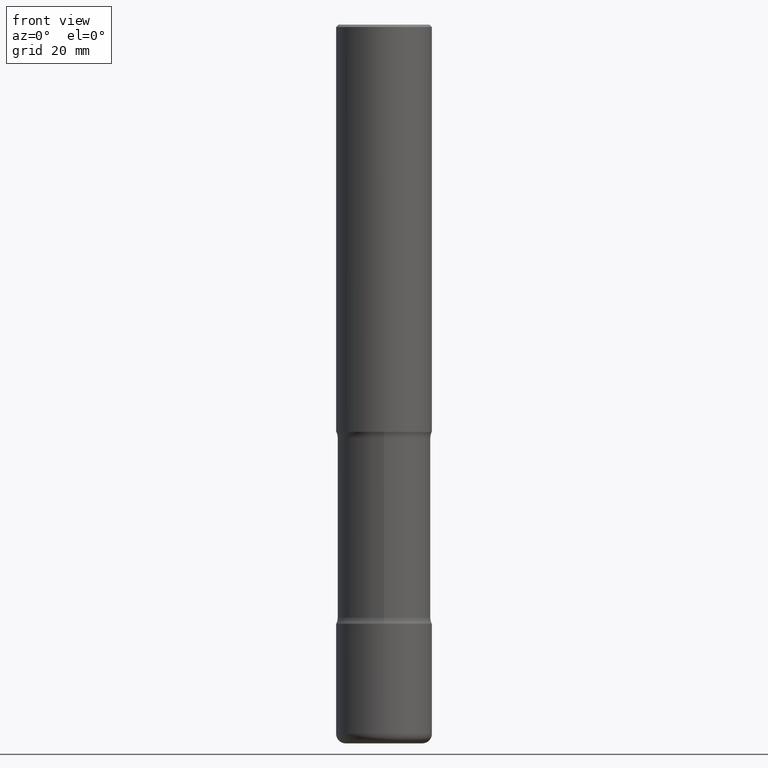
[diagram: clean part render]
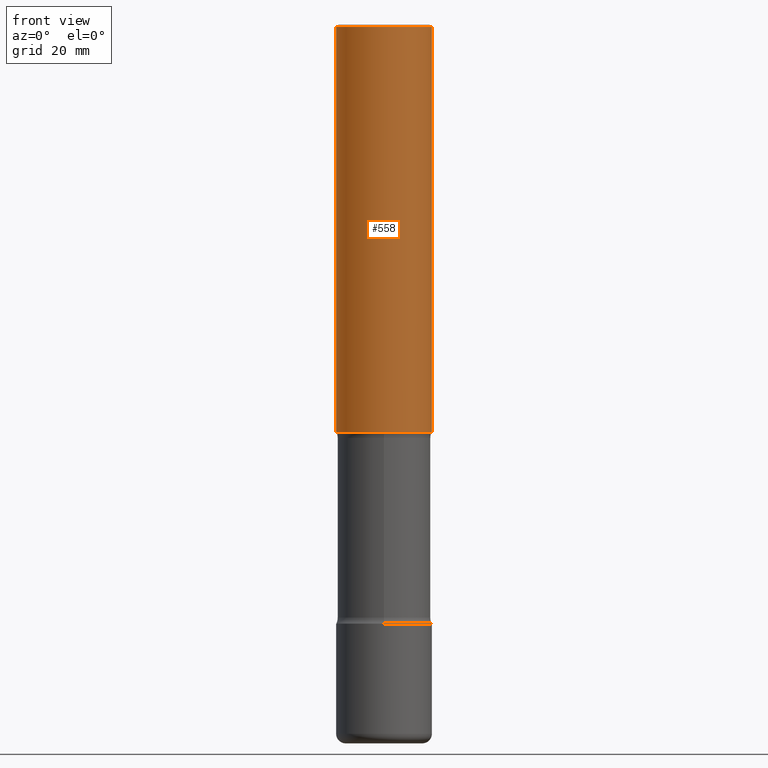
[diagram: same view with one face highlighted and labeled with its STEP entity id]
A machine part, front view. The second image highlights one B-rep face of the part: STEP entity #558.
In plain terms, the highlighted cylindrical surface (partial cylindrical patch) has radius 10 mm, axis along (-0, 0, 1).
Its self-contained STEP definition (entity closure, byte-faithful):
#5 = EDGE_CURVE ( 'NONE', #483, #218, #308, .T. ) ;
#32 = DIRECTION ( 'NONE',  ( -2.445468806185136877E-29, 3.491481338843145188E-15, 1.000000000000000000 ) ) ;
#43 = DIRECTION ( 'NONE',  ( -2.445468806185136877E-29, 3.491481338843145188E-15, 1.000000000000000000 ) ) ;
#48 = EDGE_LOOP ( 'NONE', ( #556, #122, #503, #315 ) ) ;
#78 = EDGE_CURVE ( 'NONE', #140, #183, #533, .T. ) ;
#80 = CARTESIAN_POINT ( 'NONE',  ( -0.3936999999999998279, 2.679362779428218735E-15, -0.02000000000000008715 ) ) ;
#85 = FACE_OUTER_BOUND ( 'NONE', #48, .T. ) ;
#88 = LINE ( 'NONE', #161, #512 ) ;
#122 = ORIENTED_EDGE ( 'NONE', *, *, #78, .T. ) ;
#126 = CARTESIAN_POINT ( 'NONE',  ( -0.3937000000000000499, 2.797406750687514786E-15, -1.936584745033356735E-29 ) ) ;
#140 = VERTEX_POINT ( 'NONE', #145 ) ;
#145 = CARTESIAN_POINT ( 'NONE',  ( -0.3937000000000002164, -3.079454638853261231E-15, -3.346399999999997821 ) ) ;
#148 = AXIS2_PLACEMENT_3D ( 'NONE', #322, #452, #282 ) ;
#161 = CARTESIAN_POINT ( 'NONE',  ( 0.3937000000000000499, -2.749192406205083217E-15, 1.919750796630860172E-29 ) ) ;
#178 = VECTOR ( 'NONE', #43, 39.37007874015748143 ) ;
#183 = VERTEX_POINT ( 'NONE', #537 ) ;
#188 = AXIS2_PLACEMENT_3D ( 'NONE', #401, #560, #314 ) ;
#218 = VERTEX_POINT ( 'NONE', #424 ) ;
#224 = CYLINDRICAL_SURFACE ( 'NONE', #188, 0.3937000000000000499 ) ;
#226 = DIRECTION ( 'NONE',  ( -2.445468806185136597E-29, 3.491481338843145583E-15, 1.000000000000000000 ) ) ;
#230 = CARTESIAN_POINT ( 'NONE',  ( 4.890937612370294178E-31, -6.982962677686321191E-17, -0.02000000000000008715 ) ) ;
#282 = DIRECTION ( 'NONE',  ( 1.000000000000000000, -6.982962677686265133E-15, 0.000000000000000000 ) ) ;
#308 = CIRCLE ( 'NONE', #552, 0.3936999999999998279 ) ;
#314 = DIRECTION ( 'NONE',  ( 1.000000000000000000, -6.982962677686265922E-15, 4.876176775795935793E-29 ) ) ;
#315 = ORIENTED_EDGE ( 'NONE', *, *, #5, .F. ) ;
#322 = CARTESIAN_POINT ( 'NONE',  ( 8.183516813017936514E-29, -1.168389315230469505E-14, -3.346399999999997821 ) ) ;
#401 = CARTESIAN_POINT ( 'NONE',  ( 0.000000000000000000, 0.000000000000000000, 0.000000000000000000 ) ) ;
#421 = EDGE_CURVE ( 'NONE', #183, #218, #88, .T. ) ;
#424 = CARTESIAN_POINT ( 'NONE',  ( 0.3936999999999998279, -2.770807688499514156E-15, -0.02000000000000008715 ) ) ;
#452 = DIRECTION ( 'NONE',  ( -2.445468806185136597E-29, 3.491481338843145583E-15, 1.000000000000000000 ) ) ;
#483 = VERTEX_POINT ( 'NONE', #80 ) ;
#503 = ORIENTED_EDGE ( 'NONE', *, *, #421, .T. ) ;
#512 = VECTOR ( 'NONE', #32, 39.37007874015748143 ) ;
#514 = DIRECTION ( 'NONE',  ( 1.000000000000000000, -6.982962677686266711E-15, 0.000000000000000000 ) ) ;
#517 = LINE ( 'NONE', #126, #178 ) ;
#524 = EDGE_CURVE ( 'NONE', #140, #483, #517, .T. ) ;
#533 = CIRCLE ( 'NONE', #148, 0.3937000000000002164 ) ;
#537 = CARTESIAN_POINT ( 'NONE',  ( 0.3937000000000002164, -1.443308555850977984E-14, -3.346399999999997821 ) ) ;
#552 = AXIS2_PLACEMENT_3D ( 'NONE', #230, #226, #514 ) ;
#556 = ORIENTED_EDGE ( 'NONE', *, *, #524, .F. ) ;
#558 = ADVANCED_FACE ( 'NONE', ( #85 ), #224, .T. ) ;
#560 = DIRECTION ( 'NONE',  ( -2.445468806185136597E-29, 3.491481338843145583E-15, 1.000000000000000000 ) ) ;